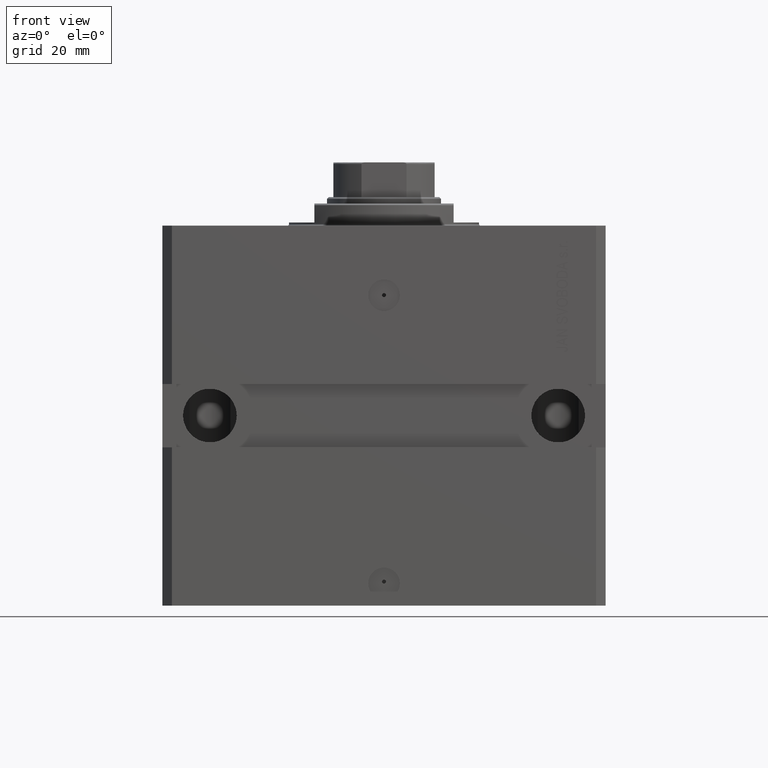
[diagram: clean part render]
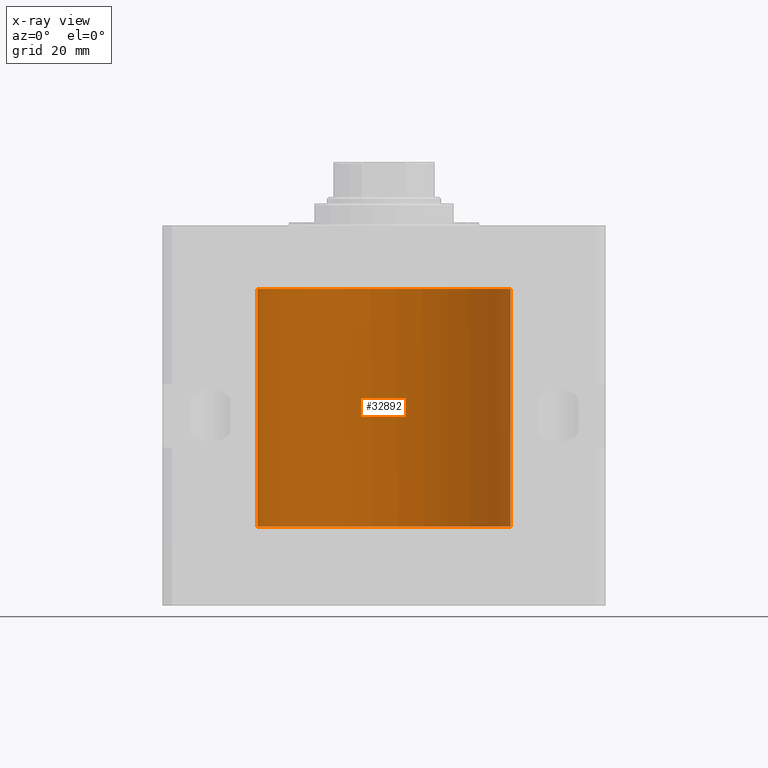
[diagram: x-ray — body ghosted, one internal face saturated and labeled with its STEP entity id]
A machine part, front view, then the same camera in x-ray: the body is ghosted and one INTERNAL B-rep face — a face not visible from any outside direction — is saturated and labeled: STEP entity #32892.
In plain terms, the highlighted cylindrical surface (partial cylindrical patch) has radius 40 mm, axis along (0, 0, 1).
Its self-contained STEP definition (entity closure, byte-faithful):
#339 = FACE_OUTER_BOUND ( 'NONE', #46183, .T. ) ;
#747 = DIRECTION ( 'NONE',  ( 0.000000000000000000, 0.000000000000000000, 1.000000000000000000 ) ) ;
#1620 = CARTESIAN_POINT ( 'NONE',  ( -39.99511688944039633, 0.6250000000000127676, -94.83492185971167032 ) ) ;
#2857 = CARTESIAN_POINT ( 'NONE',  ( -39.99628330279644928, 0.5573335244821722156, -34.67349122557948249 ) ) ;
#3101 = CARTESIAN_POINT ( 'NONE',  ( -39.99511779353280616, 0.6249421451454513221, -34.83671655111833587 ) ) ;
#3537 = CARTESIAN_POINT ( 'NONE',  ( 40.00000000000000000, 0.000000000000000000, -20.00000000000000355 ) ) ;
#3938 = CARTESIAN_POINT ( 'NONE',  ( -39.99627192929612107, 0.5584288736112177354, -94.67445463238748005 ) ) ;
#4060 = CARTESIAN_POINT ( 'NONE',  ( 0.000000000000000000, 0.000000000000000000, -95.00000000000000000 ) ) ;
#4286 = VERTEX_POINT ( 'NONE', #4484 ) ;
#4465 = DIRECTION ( 'NONE',  ( 1.000000000000000000, 0.000000000000000000, 0.000000000000000000 ) ) ;
#4484 = CARTESIAN_POINT ( 'NONE',  ( -40.00000000000000000, 1.067655236296513633E-14, -34.37500000000000000 ) ) ;
#6222 = VERTEX_POINT ( 'NONE', #3537 ) ;
#6370 = VERTEX_POINT ( 'NONE', #6868 ) ;
#6563 = CARTESIAN_POINT ( 'NONE',  ( -39.99883108112248919, 0.3150272514608761787, -34.45401719637956717 ) ) ;
#6868 = CARTESIAN_POINT ( 'NONE',  ( 40.00000000000000000, 0.000000000000000000, -95.00000000000000000 ) ) ;
#7995 = DIRECTION ( 'NONE',  ( -0.000000000000000000, -0.000000000000000000, 1.000000000000000000 ) ) ;
#8531 = ORIENTED_EDGE ( 'NONE', *, *, #42008, .T. ) ;
#9082 = LINE ( 'NONE', #28790, #28646 ) ;
#9267 = CARTESIAN_POINT ( 'NONE',  ( -39.99999999999998579, 0.1629608811977192317, -94.37500000000035527 ) ) ;
#10242 = ORIENTED_EDGE ( 'NONE', *, *, #39558, .F. ) ;
#10501 = CARTESIAN_POINT ( 'NONE',  ( -39.99819482034362039, 0.3843641341271077372, -34.50046008996472580 ) ) ;
#11175 = CIRCLE ( 'NONE', #40306, 40.00000000000000000 ) ;
#11586 = CARTESIAN_POINT ( 'NONE',  ( -39.99884891268878562, 0.3251103027878634033, -94.44131772510861822 ) ) ;
#12131 = VERTEX_POINT ( 'NONE', #26793 ) ;
#13285 = EDGE_CURVE ( 'NONE', #4286, #36863, #29175, .T. ) ;
#14097 = VERTEX_POINT ( 'NONE', #48599 ) ;
#14441 = CARTESIAN_POINT ( 'NONE',  ( -39.99511598657579725, 0.6250577762831023287, -35.16284024614854076 ) ) ;
#15398 = DIRECTION ( 'NONE',  ( -0.000000000000000000, -0.000000000000000000, 1.000000000000000000 ) ) ;
#16002 = CARTESIAN_POINT ( 'NONE',  ( -40.00000000000004974, 3.462873814982701370E-13, -35.62500000000321165 ) ) ;
#16234 = EDGE_CURVE ( 'NONE', #14097, #12131, #41937, .T. ) ;
#18163 = VECTOR ( 'NONE', #7995, 1000.000000000000000 ) ;
#18825 = CARTESIAN_POINT ( 'NONE',  ( 40.00000000000000000, 0.000000000000000000, -95.00000000000000000 ) ) ;
#19153 = AXIS2_PLACEMENT_3D ( 'NONE', #25337, #32983, #29528 ) ;
#20373 = CARTESIAN_POINT ( 'NONE',  ( -40.00000000000012790, 9.803334896741571174E-13, -94.37499999999168665 ) ) ;
#21096 = ORIENTED_EDGE ( 'NONE', *, *, #16234, .T. ) ;
#21117 = CARTESIAN_POINT ( 'NONE',  ( -39.99626798708276709, 0.5587118831704992461, -35.32511485424845432 ) ) ;
#21340 = ORIENTED_EDGE ( 'NONE', *, *, #35508, .T. ) ;
#21509 = EDGE_CURVE ( 'NONE', #6370, #12131, #27019, .T. ) ;
#21607 = CARTESIAN_POINT ( 'NONE',  ( -40.00000000000004974, 3.462873814982701370E-13, -35.62500000000321165 ) ) ;
#22739 = CARTESIAN_POINT ( 'NONE',  ( -40.00000000000000000, 4.898587196589413026E-15, -20.00000000000000355 ) ) ;
#22824 = DIRECTION ( 'NONE',  ( -0.000000000000000000, -0.000000000000000000, 1.000000000000000000 ) ) ;
#23611 = EDGE_CURVE ( 'NONE', #4286, #25102, #9082, .T. ) ;
#23758 = LINE ( 'NONE', #18825, #18163 ) ;
#25102 = VERTEX_POINT ( 'NONE', #22739 ) ;
#25337 = CARTESIAN_POINT ( 'NONE',  ( 0.000000000000000000, 0.000000000000000000, -95.00000000000000000 ) ) ;
#25524 = CYLINDRICAL_SURFACE ( 'NONE', #34635, 40.00000000000000000 ) ;
#26793 = CARTESIAN_POINT ( 'NONE',  ( -39.99511688944039633, 0.6250000000000124345, -95.00000000000000000 ) ) ;
#27019 = CIRCLE ( 'NONE', #19153, 40.00000000000000000 ) ;
#27831 = DIRECTION ( 'NONE',  ( -0.000000000000000000, -0.000000000000000000, 1.000000000000000000 ) ) ;
#28646 = VECTOR ( 'NONE', #27831, 1000.000000000000000 ) ;
#28790 = CARTESIAN_POINT ( 'NONE',  ( -40.00000000000000000, 4.898587196589413026E-15, -95.00000000000000000 ) ) ;
#29175 = B_SPLINE_CURVE_WITH_KNOTS ( 'NONE', 3,
 ( #29959, #45002, #37593, #6563, #10501, #2857, #3101, #14441, #21117, #36162, #40339, #21607 ),
 .UNSPECIFIED., .F., .F.,
 ( 4, 2, 2, 2, 2, 4 ),
 ( 1.036137471307501474E-18, 0.0002442581846113557891, 0.0004885163692227106023, 0.0009770327384454201205, 0.001465549107668129639, 0.001954065476890838940 ),
 .UNSPECIFIED. ) ;
#29528 = DIRECTION ( 'NONE',  ( 1.000000000000000000, 0.000000000000000000, 0.000000000000000000 ) ) ;
#29959 = CARTESIAN_POINT ( 'NONE',  ( -40.00000000000000000, 1.067655236296513633E-14, -34.37500000000000000 ) ) ;
#29973 = LINE ( 'NONE', #44768, #41842 ) ;
#30456 = DIRECTION ( 'NONE',  ( 1.000000000000000000, 0.000000000000000000, 0.000000000000000000 ) ) ;
#32665 = ORIENTED_EDGE ( 'NONE', *, *, #23611, .F. ) ;
#32892 = ADVANCED_FACE ( 'NONE', ( #339 ), #25524, .F. ) ;
#32983 = DIRECTION ( 'NONE',  ( 0.000000000000000000, 0.000000000000000000, 1.000000000000000000 ) ) ;
#34635 = AXIS2_PLACEMENT_3D ( 'NONE', #4060, #15398, #30456 ) ;
#35508 = EDGE_CURVE ( 'NONE', #6370, #6222, #23758, .T. ) ;
#35669 = CARTESIAN_POINT ( 'NONE',  ( -39.99511688944039633, 0.6250000000000124345, -95.00000000000000000 ) ) ;
#36162 = CARTESIAN_POINT ( 'NONE',  ( -39.99884667815961592, 0.3253863549934230548, -35.55855380835959778 ) ) ;
#36863 = VERTEX_POINT ( 'NONE', #16002 ) ;
#37593 = CARTESIAN_POINT ( 'NONE',  ( -39.99973691478699322, 0.1636360998065314876, -34.39126145361714748 ) ) ;
#38486 = CARTESIAN_POINT ( 'NONE',  ( 0.000000000000000000, 0.000000000000000000, -20.00000000000000355 ) ) ;
#39558 = EDGE_CURVE ( 'NONE', #14097, #36863, #29973, .T. ) ;
#40306 = AXIS2_PLACEMENT_3D ( 'NONE', #38486, #747, #4465 ) ;
#40339 = CARTESIAN_POINT ( 'NONE',  ( -39.99999999999999289, 0.1631654129523948116, -35.62499999999986500 ) ) ;
#41842 = VECTOR ( 'NONE', #22824, 1000.000000000000000 ) ;
#41937 = B_SPLINE_CURVE_WITH_KNOTS ( 'NONE', 3,
 ( #20373, #9267, #11586, #3938, #1620, #35669 ),
 .UNSPECIFIED., .F., .F.,
 ( 4, 2, 4 ),
 ( 0.0009772540344090913447, 0.001465458787294959039, 0.001953663540180826733 ),
 .UNSPECIFIED. ) ;
#42008 = EDGE_CURVE ( 'NONE', #6222, #25102, #11175, .T. ) ;
#44768 = CARTESIAN_POINT ( 'NONE',  ( -40.00000000000000000, 4.898587196589413026E-15, -95.00000000000000000 ) ) ;
#45002 = CARTESIAN_POINT ( 'NONE',  ( -40.00000000000000000, 0.08259175989844856625, -34.37500000000000711 ) ) ;
#46183 = EDGE_LOOP ( 'NONE', ( #10242, #21096, #46908, #21340, #8531, #32665, #47300 ) ) ;
#46908 = ORIENTED_EDGE ( 'NONE', *, *, #21509, .F. ) ;
#47300 = ORIENTED_EDGE ( 'NONE', *, *, #13285, .T. ) ;
#48599 = CARTESIAN_POINT ( 'NONE',  ( -40.00000000000012790, 9.803334896741571174E-13, -94.37499999999168665 ) ) ;